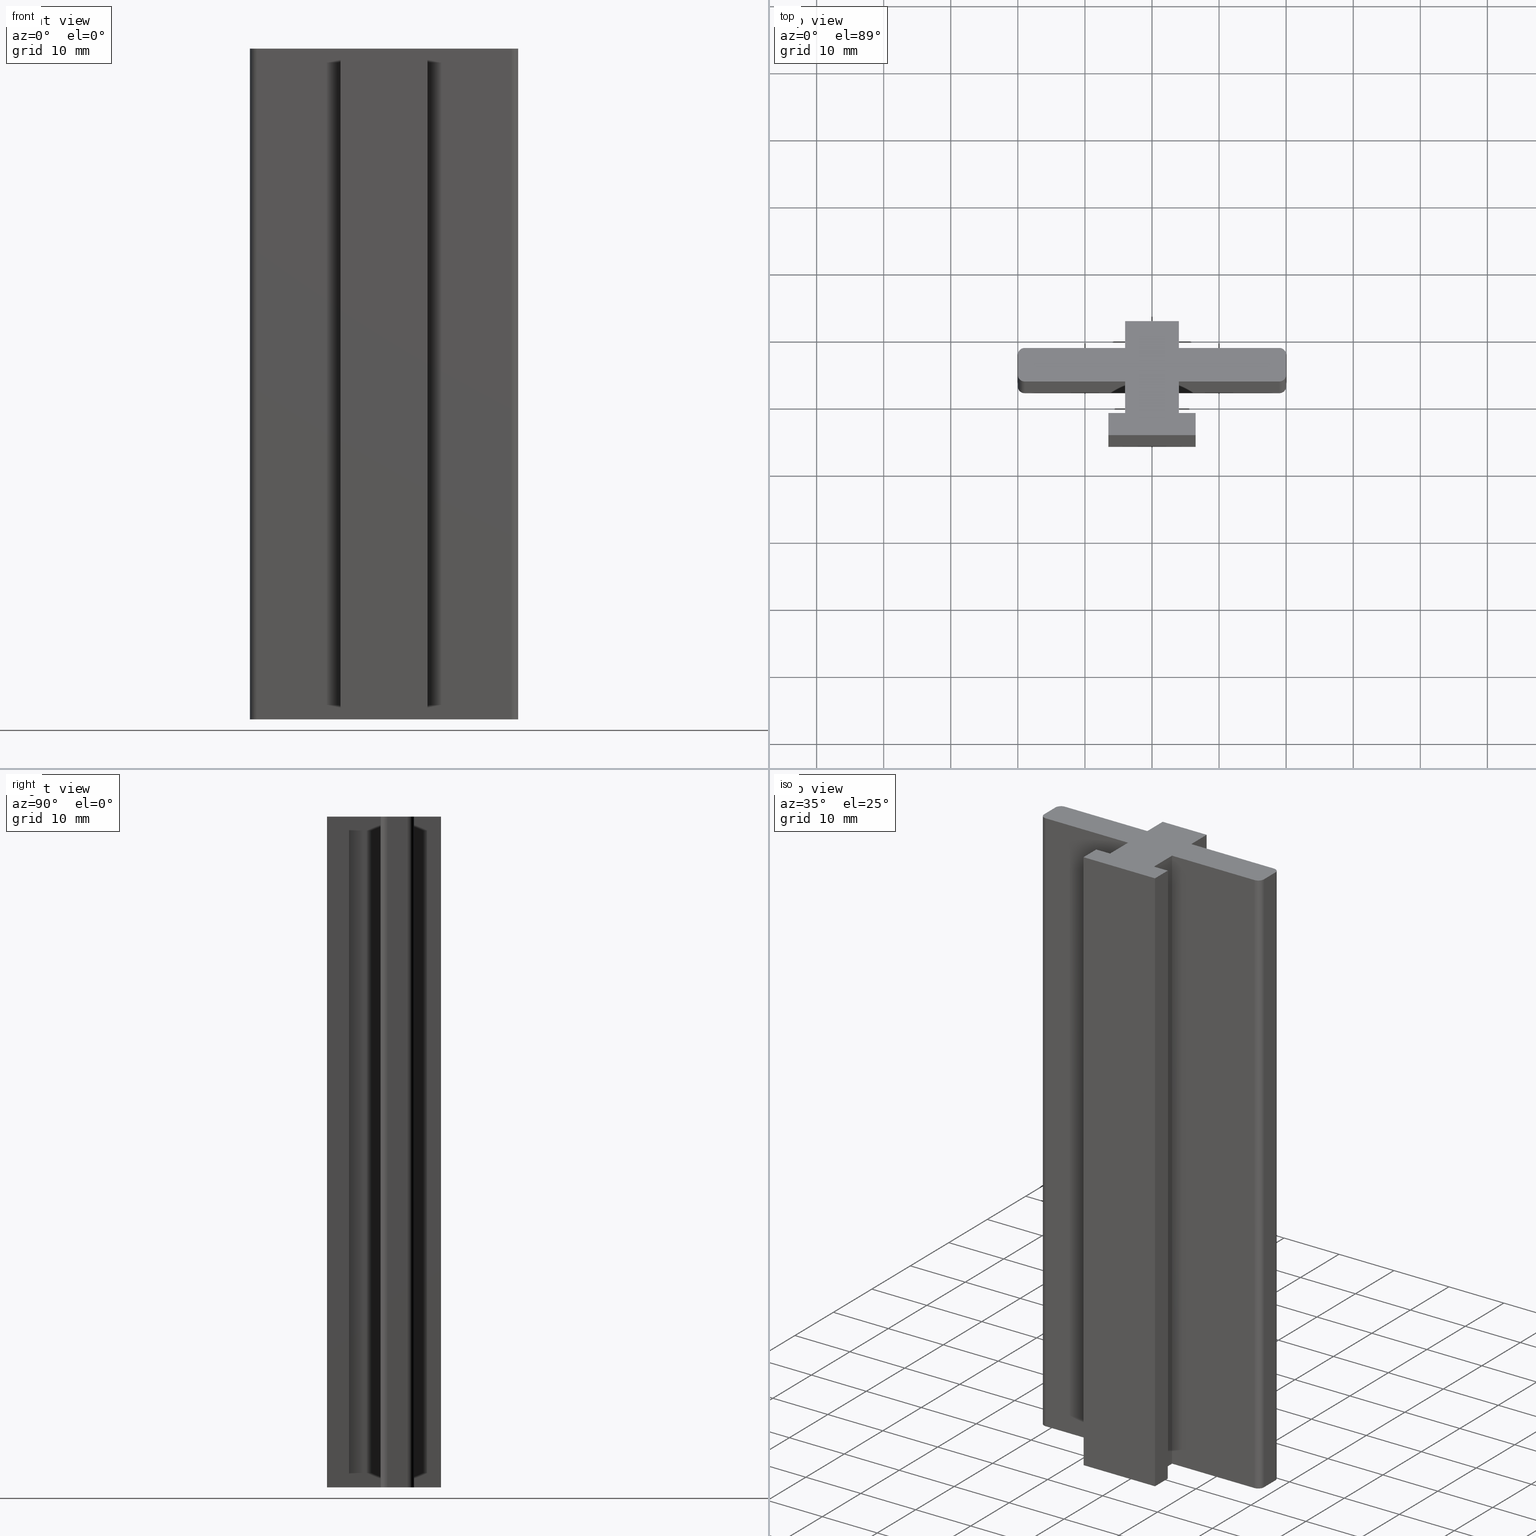
[diagram: canonical four-view strip — front | top / right | iso, engineering-drawing reading convention]
A machine part, canonical four-view strip (front | top / right | iso — engineering-drawing reading convention). The complete STEP part file that produces these views, byte-faithful:
ISO-10303-21;
HEADER;
/* Generated by software containing ST-Developer
 * from STEP Tools, Inc. (www.steptools.com) 
 */

FILE_DESCRIPTION(
/* description */ (''),
/* implementation_level */ '2;1');

FILE_NAME(
/* name */ 'Z:\\Nuovi render per accessori\\APRPZ0000019.stp',
/* time_stamp */ '2017-08-03T14:52:19+02:00',
/* author */ ('fzagni'),
/* organization */ (''),
/* preprocessor_version */ 'ST-DEVELOPER v16.1',
/* originating_system */ 'Autodesk Inventor 2016',
/* authorisation */ '');

FILE_SCHEMA (('AUTOMOTIVE_DESIGN { 1 0 10303 214 3 1 1 }'));
ENDSEC;

DATA;
#10=MECHANICAL_DESIGN_GEOMETRIC_PRESENTATION_REPRESENTATION('',(#13),#707);
#11=SHAPE_REPRESENTATION_RELATIONSHIP('SRR','None',#716,#12);
#12=ADVANCED_BREP_SHAPE_REPRESENTATION('',(#14),#706);
#13=STYLED_ITEM('',(#725),#14);
#14=MANIFOLD_SOLID_BREP('Solido1',#435);
#15=CIRCLE('',#440,1.);
#16=CIRCLE('',#441,1.);
#17=CIRCLE('',#444,1.);
#18=CIRCLE('',#445,1.);
#19=CIRCLE('',#456,1.);
#20=CIRCLE('',#457,1.);
#21=CIRCLE('',#460,1.);
#22=CIRCLE('',#461,1.);
#23=CYLINDRICAL_SURFACE('',#439,1.);
#24=CYLINDRICAL_SURFACE('',#443,1.);
#25=CYLINDRICAL_SURFACE('',#455,1.);
#26=CYLINDRICAL_SURFACE('',#459,1.);
#27=FACE_OUTER_BOUND('',#49,.T.);
#28=FACE_OUTER_BOUND('',#50,.T.);
#29=FACE_OUTER_BOUND('',#51,.T.);
#30=FACE_OUTER_BOUND('',#52,.T.);
#31=FACE_OUTER_BOUND('',#53,.T.);
#32=FACE_OUTER_BOUND('',#54,.T.);
#33=FACE_OUTER_BOUND('',#55,.T.);
#34=FACE_OUTER_BOUND('',#56,.T.);
#35=FACE_OUTER_BOUND('',#57,.T.);
#36=FACE_OUTER_BOUND('',#58,.T.);
#37=FACE_OUTER_BOUND('',#59,.T.);
#38=FACE_OUTER_BOUND('',#60,.T.);
#39=FACE_OUTER_BOUND('',#61,.T.);
#40=FACE_OUTER_BOUND('',#62,.T.);
#41=FACE_OUTER_BOUND('',#63,.T.);
#42=FACE_OUTER_BOUND('',#64,.T.);
#43=FACE_OUTER_BOUND('',#65,.T.);
#44=FACE_OUTER_BOUND('',#66,.T.);
#45=FACE_OUTER_BOUND('',#67,.T.);
#46=FACE_OUTER_BOUND('',#68,.T.);
#47=FACE_OUTER_BOUND('',#69,.T.);
#48=FACE_OUTER_BOUND('',#70,.T.);
#49=EDGE_LOOP('',(#275,#276,#277,#278));
#50=EDGE_LOOP('',(#279,#280,#281,#282));
#51=EDGE_LOOP('',(#283,#284,#285,#286));
#52=EDGE_LOOP('',(#287,#288,#289,#290));
#53=EDGE_LOOP('',(#291,#292,#293,#294));
#54=EDGE_LOOP('',(#295,#296,#297,#298));
#55=EDGE_LOOP('',(#299,#300,#301,#302));
#56=EDGE_LOOP('',(#303,#304,#305,#306));
#57=EDGE_LOOP('',(#307,#308,#309,#310));
#58=EDGE_LOOP('',(#311,#312,#313,#314));
#59=EDGE_LOOP('',(#315,#316,#317,#318));
#60=EDGE_LOOP('',(#319,#320,#321,#322));
#61=EDGE_LOOP('',(#323,#324,#325,#326));
#62=EDGE_LOOP('',(#327,#328,#329,#330));
#63=EDGE_LOOP('',(#331,#332,#333,#334));
#64=EDGE_LOOP('',(#335,#336,#337,#338));
#65=EDGE_LOOP('',(#339,#340,#341,#342));
#66=EDGE_LOOP('',(#343,#344,#345,#346));
#67=EDGE_LOOP('',(#347,#348,#349,#350));
#68=EDGE_LOOP('',(#351,#352,#353,#354));
#69=EDGE_LOOP('',(#355,#356,#357,#358,#359,#360,#361,#362,#363,#364,#365,
#366,#367,#368,#369,#370,#371,#372,#373,#374));
#70=EDGE_LOOP('',(#375,#376,#377,#378,#379,#380,#381,#382,#383,#384,#385,
#386,#387,#388,#389,#390,#391,#392,#393,#394));
#71=LINE('',#585,#123);
#72=LINE('',#587,#124);
#73=LINE('',#589,#125);
#74=LINE('',#590,#126);
#75=LINE('',#593,#127);
#76=LINE('',#595,#128);
#77=LINE('',#596,#129);
#78=LINE('',#602,#130);
#79=LINE('',#605,#131);
#80=LINE('',#607,#132);
#81=LINE('',#608,#133);
#82=LINE('',#614,#134);
#83=LINE('',#617,#135);
#84=LINE('',#619,#136);
#85=LINE('',#620,#137);
#86=LINE('',#623,#138);
#87=LINE('',#625,#139);
#88=LINE('',#626,#140);
#89=LINE('',#629,#141);
#90=LINE('',#631,#142);
#91=LINE('',#632,#143);
#92=LINE('',#635,#144);
#93=LINE('',#637,#145);
#94=LINE('',#638,#146);
#95=LINE('',#641,#147);
#96=LINE('',#643,#148);
#97=LINE('',#644,#149);
#98=LINE('',#647,#150);
#99=LINE('',#649,#151);
#100=LINE('',#650,#152);
#101=LINE('',#653,#153);
#102=LINE('',#655,#154);
#103=LINE('',#656,#155);
#104=LINE('',#659,#156);
#105=LINE('',#661,#157);
#106=LINE('',#662,#158);
#107=LINE('',#665,#159);
#108=LINE('',#667,#160);
#109=LINE('',#668,#161);
#110=LINE('',#674,#162);
#111=LINE('',#677,#163);
#112=LINE('',#679,#164);
#113=LINE('',#680,#165);
#114=LINE('',#686,#166);
#115=LINE('',#689,#167);
#116=LINE('',#691,#168);
#117=LINE('',#692,#169);
#118=LINE('',#695,#170);
#119=LINE('',#697,#171);
#120=LINE('',#698,#172);
#121=LINE('',#700,#173);
#122=LINE('',#701,#174);
#123=VECTOR('',#471,4.);
#124=VECTOR('',#472,100.);
#125=VECTOR('',#473,4.);
#126=VECTOR('',#474,100.);
#127=VECTOR('',#477,15.);
#128=VECTOR('',#478,15.);
#129=VECTOR('',#479,100.);
#130=VECTOR('',#486,100.);
#131=VECTOR('',#489,3.);
#132=VECTOR('',#490,3.);
#133=VECTOR('',#491,100.);
#134=VECTOR('',#498,100.);
#135=VECTOR('',#501,15.);
#136=VECTOR('',#502,15.);
#137=VECTOR('',#503,100.);
#138=VECTOR('',#506,4.7);
#139=VECTOR('',#507,4.7);
#140=VECTOR('',#508,100.);
#141=VECTOR('',#511,2.5);
#142=VECTOR('',#512,2.5);
#143=VECTOR('',#513,100.);
#144=VECTOR('',#516,3.3);
#145=VECTOR('',#517,3.3);
#146=VECTOR('',#518,100.);
#147=VECTOR('',#521,13.);
#148=VECTOR('',#522,13.);
#149=VECTOR('',#523,100.);
#150=VECTOR('',#526,3.3);
#151=VECTOR('',#527,3.3);
#152=VECTOR('',#528,100.);
#153=VECTOR('',#531,2.5);
#154=VECTOR('',#532,2.5);
#155=VECTOR('',#533,100.);
#156=VECTOR('',#536,4.7);
#157=VECTOR('',#537,4.7);
#158=VECTOR('',#538,100.);
#159=VECTOR('',#541,15.);
#160=VECTOR('',#542,15.);
#161=VECTOR('',#543,100.);
#162=VECTOR('',#550,100.);
#163=VECTOR('',#553,3.);
#164=VECTOR('',#554,3.);
#165=VECTOR('',#555,100.);
#166=VECTOR('',#562,100.);
#167=VECTOR('',#565,15.);
#168=VECTOR('',#566,15.);
#169=VECTOR('',#567,100.);
#170=VECTOR('',#570,4.);
#171=VECTOR('',#571,4.);
#172=VECTOR('',#572,100.);
#173=VECTOR('',#575,8.);
#174=VECTOR('',#576,8.);
#175=VERTEX_POINT('',#583);
#176=VERTEX_POINT('',#584);
#177=VERTEX_POINT('',#586);
#178=VERTEX_POINT('',#588);
#179=VERTEX_POINT('',#592);
#180=VERTEX_POINT('',#594);
#181=VERTEX_POINT('',#598);
#182=VERTEX_POINT('',#600);
#183=VERTEX_POINT('',#604);
#184=VERTEX_POINT('',#606);
#185=VERTEX_POINT('',#610);
#186=VERTEX_POINT('',#612);
#187=VERTEX_POINT('',#616);
#188=VERTEX_POINT('',#618);
#189=VERTEX_POINT('',#622);
#190=VERTEX_POINT('',#624);
#191=VERTEX_POINT('',#628);
#192=VERTEX_POINT('',#630);
#193=VERTEX_POINT('',#634);
#194=VERTEX_POINT('',#636);
#195=VERTEX_POINT('',#640);
#196=VERTEX_POINT('',#642);
#197=VERTEX_POINT('',#646);
#198=VERTEX_POINT('',#648);
#199=VERTEX_POINT('',#652);
#200=VERTEX_POINT('',#654);
#201=VERTEX_POINT('',#658);
#202=VERTEX_POINT('',#660);
#203=VERTEX_POINT('',#664);
#204=VERTEX_POINT('',#666);
#205=VERTEX_POINT('',#670);
#206=VERTEX_POINT('',#672);
#207=VERTEX_POINT('',#676);
#208=VERTEX_POINT('',#678);
#209=VERTEX_POINT('',#682);
#210=VERTEX_POINT('',#684);
#211=VERTEX_POINT('',#688);
#212=VERTEX_POINT('',#690);
#213=VERTEX_POINT('',#694);
#214=VERTEX_POINT('',#696);
#215=EDGE_CURVE('',#175,#176,#71,.T.);
#216=EDGE_CURVE('',#176,#177,#72,.T.);
#217=EDGE_CURVE('',#178,#177,#73,.T.);
#218=EDGE_CURVE('',#175,#178,#74,.T.);
#219=EDGE_CURVE('',#179,#175,#75,.T.);
#220=EDGE_CURVE('',#180,#178,#76,.T.);
#221=EDGE_CURVE('',#179,#180,#77,.T.);
#222=EDGE_CURVE('',#181,#179,#15,.T.);
#223=EDGE_CURVE('',#182,#180,#16,.T.);
#224=EDGE_CURVE('',#181,#182,#78,.T.);
#225=EDGE_CURVE('',#183,#181,#79,.T.);
#226=EDGE_CURVE('',#184,#182,#80,.T.);
#227=EDGE_CURVE('',#183,#184,#81,.T.);
#228=EDGE_CURVE('',#185,#183,#17,.T.);
#229=EDGE_CURVE('',#186,#184,#18,.T.);
#230=EDGE_CURVE('',#185,#186,#82,.T.);
#231=EDGE_CURVE('',#187,#185,#83,.T.);
#232=EDGE_CURVE('',#188,#186,#84,.T.);
#233=EDGE_CURVE('',#187,#188,#85,.T.);
#234=EDGE_CURVE('',#189,#187,#86,.T.);
#235=EDGE_CURVE('',#190,#188,#87,.T.);
#236=EDGE_CURVE('',#189,#190,#88,.T.);
#237=EDGE_CURVE('',#191,#189,#89,.T.);
#238=EDGE_CURVE('',#192,#190,#90,.T.);
#239=EDGE_CURVE('',#191,#192,#91,.T.);
#240=EDGE_CURVE('',#193,#191,#92,.T.);
#241=EDGE_CURVE('',#194,#192,#93,.T.);
#242=EDGE_CURVE('',#193,#194,#94,.T.);
#243=EDGE_CURVE('',#195,#193,#95,.T.);
#244=EDGE_CURVE('',#196,#194,#96,.T.);
#245=EDGE_CURVE('',#195,#196,#97,.T.);
#246=EDGE_CURVE('',#197,#195,#98,.T.);
#247=EDGE_CURVE('',#198,#196,#99,.T.);
#248=EDGE_CURVE('',#197,#198,#100,.T.);
#249=EDGE_CURVE('',#199,#197,#101,.T.);
#250=EDGE_CURVE('',#200,#198,#102,.T.);
#251=EDGE_CURVE('',#199,#200,#103,.T.);
#252=EDGE_CURVE('',#201,#199,#104,.T.);
#253=EDGE_CURVE('',#202,#200,#105,.T.);
#254=EDGE_CURVE('',#201,#202,#106,.T.);
#255=EDGE_CURVE('',#203,#201,#107,.T.);
#256=EDGE_CURVE('',#204,#202,#108,.T.);
#257=EDGE_CURVE('',#203,#204,#109,.T.);
#258=EDGE_CURVE('',#205,#203,#19,.T.);
#259=EDGE_CURVE('',#206,#204,#20,.T.);
#260=EDGE_CURVE('',#205,#206,#110,.T.);
#261=EDGE_CURVE('',#207,#205,#111,.T.);
#262=EDGE_CURVE('',#208,#206,#112,.T.);
#263=EDGE_CURVE('',#207,#208,#113,.T.);
#264=EDGE_CURVE('',#209,#207,#21,.T.);
#265=EDGE_CURVE('',#210,#208,#22,.T.);
#266=EDGE_CURVE('',#209,#210,#114,.T.);
#267=EDGE_CURVE('',#211,#209,#115,.T.);
#268=EDGE_CURVE('',#212,#210,#116,.T.);
#269=EDGE_CURVE('',#211,#212,#117,.T.);
#270=EDGE_CURVE('',#213,#211,#118,.T.);
#271=EDGE_CURVE('',#214,#212,#119,.T.);
#272=EDGE_CURVE('',#213,#214,#120,.T.);
#273=EDGE_CURVE('',#176,#213,#121,.T.);
#274=EDGE_CURVE('',#177,#214,#122,.T.);
#275=ORIENTED_EDGE('',*,*,#215,.T.);
#276=ORIENTED_EDGE('',*,*,#216,.T.);
#277=ORIENTED_EDGE('',*,*,#217,.F.);
#278=ORIENTED_EDGE('',*,*,#218,.F.);
#279=ORIENTED_EDGE('',*,*,#219,.T.);
#280=ORIENTED_EDGE('',*,*,#218,.T.);
#281=ORIENTED_EDGE('',*,*,#220,.F.);
#282=ORIENTED_EDGE('',*,*,#221,.F.);
#283=ORIENTED_EDGE('',*,*,#222,.T.);
#284=ORIENTED_EDGE('',*,*,#221,.T.);
#285=ORIENTED_EDGE('',*,*,#223,.F.);
#286=ORIENTED_EDGE('',*,*,#224,.F.);
#287=ORIENTED_EDGE('',*,*,#225,.T.);
#288=ORIENTED_EDGE('',*,*,#224,.T.);
#289=ORIENTED_EDGE('',*,*,#226,.F.);
#290=ORIENTED_EDGE('',*,*,#227,.F.);
#291=ORIENTED_EDGE('',*,*,#228,.T.);
#292=ORIENTED_EDGE('',*,*,#227,.T.);
#293=ORIENTED_EDGE('',*,*,#229,.F.);
#294=ORIENTED_EDGE('',*,*,#230,.F.);
#295=ORIENTED_EDGE('',*,*,#231,.T.);
#296=ORIENTED_EDGE('',*,*,#230,.T.);
#297=ORIENTED_EDGE('',*,*,#232,.F.);
#298=ORIENTED_EDGE('',*,*,#233,.F.);
#299=ORIENTED_EDGE('',*,*,#234,.T.);
#300=ORIENTED_EDGE('',*,*,#233,.T.);
#301=ORIENTED_EDGE('',*,*,#235,.F.);
#302=ORIENTED_EDGE('',*,*,#236,.F.);
#303=ORIENTED_EDGE('',*,*,#237,.T.);
#304=ORIENTED_EDGE('',*,*,#236,.T.);
#305=ORIENTED_EDGE('',*,*,#238,.F.);
#306=ORIENTED_EDGE('',*,*,#239,.F.);
#307=ORIENTED_EDGE('',*,*,#240,.T.);
#308=ORIENTED_EDGE('',*,*,#239,.T.);
#309=ORIENTED_EDGE('',*,*,#241,.F.);
#310=ORIENTED_EDGE('',*,*,#242,.F.);
#311=ORIENTED_EDGE('',*,*,#243,.T.);
#312=ORIENTED_EDGE('',*,*,#242,.T.);
#313=ORIENTED_EDGE('',*,*,#244,.F.);
#314=ORIENTED_EDGE('',*,*,#245,.F.);
#315=ORIENTED_EDGE('',*,*,#246,.T.);
#316=ORIENTED_EDGE('',*,*,#245,.T.);
#317=ORIENTED_EDGE('',*,*,#247,.F.);
#318=ORIENTED_EDGE('',*,*,#248,.F.);
#319=ORIENTED_EDGE('',*,*,#249,.T.);
#320=ORIENTED_EDGE('',*,*,#248,.T.);
#321=ORIENTED_EDGE('',*,*,#250,.F.);
#322=ORIENTED_EDGE('',*,*,#251,.F.);
#323=ORIENTED_EDGE('',*,*,#252,.T.);
#324=ORIENTED_EDGE('',*,*,#251,.T.);
#325=ORIENTED_EDGE('',*,*,#253,.F.);
#326=ORIENTED_EDGE('',*,*,#254,.F.);
#327=ORIENTED_EDGE('',*,*,#255,.T.);
#328=ORIENTED_EDGE('',*,*,#254,.T.);
#329=ORIENTED_EDGE('',*,*,#256,.F.);
#330=ORIENTED_EDGE('',*,*,#257,.F.);
#331=ORIENTED_EDGE('',*,*,#258,.T.);
#332=ORIENTED_EDGE('',*,*,#257,.T.);
#333=ORIENTED_EDGE('',*,*,#259,.F.);
#334=ORIENTED_EDGE('',*,*,#260,.F.);
#335=ORIENTED_EDGE('',*,*,#261,.T.);
#336=ORIENTED_EDGE('',*,*,#260,.T.);
#337=ORIENTED_EDGE('',*,*,#262,.F.);
#338=ORIENTED_EDGE('',*,*,#263,.F.);
#339=ORIENTED_EDGE('',*,*,#264,.T.);
#340=ORIENTED_EDGE('',*,*,#263,.T.);
#341=ORIENTED_EDGE('',*,*,#265,.F.);
#342=ORIENTED_EDGE('',*,*,#266,.F.);
#343=ORIENTED_EDGE('',*,*,#267,.T.);
#344=ORIENTED_EDGE('',*,*,#266,.T.);
#345=ORIENTED_EDGE('',*,*,#268,.F.);
#346=ORIENTED_EDGE('',*,*,#269,.F.);
#347=ORIENTED_EDGE('',*,*,#270,.T.);
#348=ORIENTED_EDGE('',*,*,#269,.T.);
#349=ORIENTED_EDGE('',*,*,#271,.F.);
#350=ORIENTED_EDGE('',*,*,#272,.F.);
#351=ORIENTED_EDGE('',*,*,#273,.T.);
#352=ORIENTED_EDGE('',*,*,#272,.T.);
#353=ORIENTED_EDGE('',*,*,#274,.F.);
#354=ORIENTED_EDGE('',*,*,#216,.F.);
#355=ORIENTED_EDGE('',*,*,#274,.T.);
#356=ORIENTED_EDGE('',*,*,#271,.T.);
#357=ORIENTED_EDGE('',*,*,#268,.T.);
#358=ORIENTED_EDGE('',*,*,#265,.T.);
#359=ORIENTED_EDGE('',*,*,#262,.T.);
#360=ORIENTED_EDGE('',*,*,#259,.T.);
#361=ORIENTED_EDGE('',*,*,#256,.T.);
#362=ORIENTED_EDGE('',*,*,#253,.T.);
#363=ORIENTED_EDGE('',*,*,#250,.T.);
#364=ORIENTED_EDGE('',*,*,#247,.T.);
#365=ORIENTED_EDGE('',*,*,#244,.T.);
#366=ORIENTED_EDGE('',*,*,#241,.T.);
#367=ORIENTED_EDGE('',*,*,#238,.T.);
#368=ORIENTED_EDGE('',*,*,#235,.T.);
#369=ORIENTED_EDGE('',*,*,#232,.T.);
#370=ORIENTED_EDGE('',*,*,#229,.T.);
#371=ORIENTED_EDGE('',*,*,#226,.T.);
#372=ORIENTED_EDGE('',*,*,#223,.T.);
#373=ORIENTED_EDGE('',*,*,#220,.T.);
#374=ORIENTED_EDGE('',*,*,#217,.T.);
#375=ORIENTED_EDGE('',*,*,#273,.F.);
#376=ORIENTED_EDGE('',*,*,#215,.F.);
#377=ORIENTED_EDGE('',*,*,#219,.F.);
#378=ORIENTED_EDGE('',*,*,#222,.F.);
#379=ORIENTED_EDGE('',*,*,#225,.F.);
#380=ORIENTED_EDGE('',*,*,#228,.F.);
#381=ORIENTED_EDGE('',*,*,#231,.F.);
#382=ORIENTED_EDGE('',*,*,#234,.F.);
#383=ORIENTED_EDGE('',*,*,#237,.F.);
#384=ORIENTED_EDGE('',*,*,#240,.F.);
#385=ORIENTED_EDGE('',*,*,#243,.F.);
#386=ORIENTED_EDGE('',*,*,#246,.F.);
#387=ORIENTED_EDGE('',*,*,#249,.F.);
#388=ORIENTED_EDGE('',*,*,#252,.F.);
#389=ORIENTED_EDGE('',*,*,#255,.F.);
#390=ORIENTED_EDGE('',*,*,#258,.F.);
#391=ORIENTED_EDGE('',*,*,#261,.F.);
#392=ORIENTED_EDGE('',*,*,#264,.F.);
#393=ORIENTED_EDGE('',*,*,#267,.F.);
#394=ORIENTED_EDGE('',*,*,#270,.F.);
#395=PLANE('',#437);
#396=PLANE('',#438);
#397=PLANE('',#442);
#398=PLANE('',#446);
#399=PLANE('',#447);
#400=PLANE('',#448);
#401=PLANE('',#449);
#402=PLANE('',#450);
#403=PLANE('',#451);
#404=PLANE('',#452);
#405=PLANE('',#453);
#406=PLANE('',#454);
#407=PLANE('',#458);
#408=PLANE('',#462);
#409=PLANE('',#463);
#410=PLANE('',#464);
#411=PLANE('',#465);
#412=PLANE('',#466);
#413=ADVANCED_FACE('',(#27),#395,.T.);
#414=ADVANCED_FACE('',(#28),#396,.T.);
#415=ADVANCED_FACE('',(#29),#23,.T.);
#416=ADVANCED_FACE('',(#30),#397,.T.);
#417=ADVANCED_FACE('',(#31),#24,.T.);
#418=ADVANCED_FACE('',(#32),#398,.T.);
#419=ADVANCED_FACE('',(#33),#399,.T.);
#420=ADVANCED_FACE('',(#34),#400,.T.);
#421=ADVANCED_FACE('',(#35),#401,.T.);
#422=ADVANCED_FACE('',(#36),#402,.T.);
#423=ADVANCED_FACE('',(#37),#403,.T.);
#424=ADVANCED_FACE('',(#38),#404,.T.);
#425=ADVANCED_FACE('',(#39),#405,.T.);
#426=ADVANCED_FACE('',(#40),#406,.T.);
#427=ADVANCED_FACE('',(#41),#25,.T.);
#428=ADVANCED_FACE('',(#42),#407,.T.);
#429=ADVANCED_FACE('',(#43),#26,.T.);
#430=ADVANCED_FACE('',(#44),#408,.T.);
#431=ADVANCED_FACE('',(#45),#409,.T.);
#432=ADVANCED_FACE('',(#46),#410,.T.);
#433=ADVANCED_FACE('',(#47),#411,.T.);
#434=ADVANCED_FACE('',(#48),#412,.F.);
#435=CLOSED_SHELL('',(#413,#414,#415,#416,#417,#418,#419,#420,#421,#422,
#423,#424,#425,#426,#427,#428,#429,#430,#431,#432,#433,#434));
#436=AXIS2_PLACEMENT_3D('placement',#581,#467,#468);
#437=AXIS2_PLACEMENT_3D('',#582,#469,#470);
#438=AXIS2_PLACEMENT_3D('',#591,#475,#476);
#439=AXIS2_PLACEMENT_3D('',#597,#480,#481);
#440=AXIS2_PLACEMENT_3D('',#599,#482,#483);
#441=AXIS2_PLACEMENT_3D('',#601,#484,#485);
#442=AXIS2_PLACEMENT_3D('',#603,#487,#488);
#443=AXIS2_PLACEMENT_3D('',#609,#492,#493);
#444=AXIS2_PLACEMENT_3D('',#611,#494,#495);
#445=AXIS2_PLACEMENT_3D('',#613,#496,#497);
#446=AXIS2_PLACEMENT_3D('',#615,#499,#500);
#447=AXIS2_PLACEMENT_3D('',#621,#504,#505);
#448=AXIS2_PLACEMENT_3D('',#627,#509,#510);
#449=AXIS2_PLACEMENT_3D('',#633,#514,#515);
#450=AXIS2_PLACEMENT_3D('',#639,#519,#520);
#451=AXIS2_PLACEMENT_3D('',#645,#524,#525);
#452=AXIS2_PLACEMENT_3D('',#651,#529,#530);
#453=AXIS2_PLACEMENT_3D('',#657,#534,#535);
#454=AXIS2_PLACEMENT_3D('',#663,#539,#540);
#455=AXIS2_PLACEMENT_3D('',#669,#544,#545);
#456=AXIS2_PLACEMENT_3D('',#671,#546,#547);
#457=AXIS2_PLACEMENT_3D('',#673,#548,#549);
#458=AXIS2_PLACEMENT_3D('',#675,#551,#552);
#459=AXIS2_PLACEMENT_3D('',#681,#556,#557);
#460=AXIS2_PLACEMENT_3D('',#683,#558,#559);
#461=AXIS2_PLACEMENT_3D('',#685,#560,#561);
#462=AXIS2_PLACEMENT_3D('',#687,#563,#564);
#463=AXIS2_PLACEMENT_3D('',#693,#568,#569);
#464=AXIS2_PLACEMENT_3D('',#699,#573,#574);
#465=AXIS2_PLACEMENT_3D('',#702,#577,#578);
#466=AXIS2_PLACEMENT_3D('',#703,#579,#580);
#467=DIRECTION('axis',(0.,0.,1.));
#468=DIRECTION('refdir',(1.,0.,0.));
#469=DIRECTION('center_axis',(1.,0.,0.));
#470=DIRECTION('ref_axis',(0.,1.,0.));
#471=DIRECTION('',(0.,1.,0.));
#472=DIRECTION('',(0.,0.,1.));
#473=DIRECTION('',(0.,1.,0.));
#474=DIRECTION('',(0.,0.,1.));
#475=DIRECTION('center_axis',(0.,1.,0.));
#476=DIRECTION('ref_axis',(-1.,0.,0.));
#477=DIRECTION('',(-1.,0.,0.));
#478=DIRECTION('',(-1.,0.,0.));
#479=DIRECTION('',(0.,0.,1.));
#480=DIRECTION('center_axis',(0.,0.,1.));
#481=DIRECTION('ref_axis',(1.,-1.11022302462516E-15,0.));
#482=DIRECTION('center_axis',(0.,0.,1.));
#483=DIRECTION('ref_axis',(1.,-1.11022302462516E-15,0.));
#484=DIRECTION('center_axis',(0.,0.,1.));
#485=DIRECTION('ref_axis',(1.,-1.11022302462516E-15,0.));
#486=DIRECTION('',(0.,0.,1.));
#487=DIRECTION('center_axis',(1.,0.,0.));
#488=DIRECTION('ref_axis',(0.,1.,0.));
#489=DIRECTION('',(0.,1.,0.));
#490=DIRECTION('',(0.,1.,0.));
#491=DIRECTION('',(0.,0.,1.));
#492=DIRECTION('center_axis',(0.,0.,1.));
#493=DIRECTION('ref_axis',(0.,-1.,0.));
#494=DIRECTION('center_axis',(0.,0.,1.));
#495=DIRECTION('ref_axis',(0.,-1.,0.));
#496=DIRECTION('center_axis',(0.,0.,1.));
#497=DIRECTION('ref_axis',(0.,-1.,0.));
#498=DIRECTION('',(0.,0.,1.));
#499=DIRECTION('center_axis',(0.,-1.,0.));
#500=DIRECTION('ref_axis',(1.,0.,0.));
#501=DIRECTION('',(1.,0.,0.));
#502=DIRECTION('',(1.,0.,0.));
#503=DIRECTION('',(0.,0.,1.));
#504=DIRECTION('center_axis',(1.,0.,0.));
#505=DIRECTION('ref_axis',(0.,1.,0.));
#506=DIRECTION('',(0.,1.,0.));
#507=DIRECTION('',(0.,1.,0.));
#508=DIRECTION('',(0.,0.,1.));
#509=DIRECTION('center_axis',(0.,1.,0.));
#510=DIRECTION('ref_axis',(-1.,0.,0.));
#511=DIRECTION('',(-1.,0.,0.));
#512=DIRECTION('',(-1.,0.,0.));
#513=DIRECTION('',(0.,0.,1.));
#514=DIRECTION('center_axis',(1.,0.,0.));
#515=DIRECTION('ref_axis',(0.,1.,0.));
#516=DIRECTION('',(0.,1.,0.));
#517=DIRECTION('',(0.,1.,0.));
#518=DIRECTION('',(0.,0.,1.));
#519=DIRECTION('center_axis',(0.,-1.,0.));
#520=DIRECTION('ref_axis',(1.,0.,0.));
#521=DIRECTION('',(1.,0.,0.));
#522=DIRECTION('',(1.,0.,0.));
#523=DIRECTION('',(0.,0.,1.));
#524=DIRECTION('center_axis',(-1.,0.,0.));
#525=DIRECTION('ref_axis',(0.,-1.,0.));
#526=DIRECTION('',(0.,-1.,0.));
#527=DIRECTION('',(0.,-1.,0.));
#528=DIRECTION('',(0.,0.,1.));
#529=DIRECTION('center_axis',(0.,1.,0.));
#530=DIRECTION('ref_axis',(-1.,0.,0.));
#531=DIRECTION('',(-1.,0.,0.));
#532=DIRECTION('',(-1.,0.,0.));
#533=DIRECTION('',(0.,0.,1.));
#534=DIRECTION('center_axis',(-1.,0.,0.));
#535=DIRECTION('ref_axis',(0.,-1.,0.));
#536=DIRECTION('',(0.,-1.,0.));
#537=DIRECTION('',(0.,-1.,0.));
#538=DIRECTION('',(0.,0.,1.));
#539=DIRECTION('center_axis',(0.,-1.,0.));
#540=DIRECTION('ref_axis',(1.,0.,0.));
#541=DIRECTION('',(1.,0.,0.));
#542=DIRECTION('',(1.,0.,0.));
#543=DIRECTION('',(0.,0.,1.));
#544=DIRECTION('center_axis',(0.,0.,1.));
#545=DIRECTION('ref_axis',(-1.,0.,0.));
#546=DIRECTION('center_axis',(0.,0.,1.));
#547=DIRECTION('ref_axis',(-1.,0.,0.));
#548=DIRECTION('center_axis',(0.,0.,1.));
#549=DIRECTION('ref_axis',(-1.,0.,0.));
#550=DIRECTION('',(0.,0.,1.));
#551=DIRECTION('center_axis',(-1.,0.,0.));
#552=DIRECTION('ref_axis',(0.,-1.,0.));
#553=DIRECTION('',(0.,-1.,0.));
#554=DIRECTION('',(0.,-1.,0.));
#555=DIRECTION('',(0.,0.,1.));
#556=DIRECTION('center_axis',(0.,0.,1.));
#557=DIRECTION('ref_axis',(0.,1.,0.));
#558=DIRECTION('center_axis',(0.,0.,1.));
#559=DIRECTION('ref_axis',(0.,1.,0.));
#560=DIRECTION('center_axis',(0.,0.,1.));
#561=DIRECTION('ref_axis',(0.,1.,0.));
#562=DIRECTION('',(0.,0.,1.));
#563=DIRECTION('center_axis',(0.,1.,0.));
#564=DIRECTION('ref_axis',(-1.,0.,0.));
#565=DIRECTION('',(-1.,0.,0.));
#566=DIRECTION('',(-1.,0.,0.));
#567=DIRECTION('',(0.,0.,1.));
#568=DIRECTION('center_axis',(-1.,0.,0.));
#569=DIRECTION('ref_axis',(0.,-1.,0.));
#570=DIRECTION('',(0.,-1.,0.));
#571=DIRECTION('',(0.,-1.,0.));
#572=DIRECTION('',(0.,0.,1.));
#573=DIRECTION('center_axis',(0.,1.,0.));
#574=DIRECTION('ref_axis',(-1.,0.,0.));
#575=DIRECTION('',(-1.,0.,0.));
#576=DIRECTION('',(-1.,0.,0.));
#577=DIRECTION('center_axis',(0.,0.,1.));
#578=DIRECTION('ref_axis',(1.,0.,0.));
#579=DIRECTION('center_axis',(0.,0.,1.));
#580=DIRECTION('ref_axis',(1.,0.,0.));
#581=CARTESIAN_POINT('',(0.,0.,0.));
#582=CARTESIAN_POINT('Origin',(4.,7.35,0.));
#583=CARTESIAN_POINT('',(4.,7.35,0.));
#584=CARTESIAN_POINT('',(4.,11.35,0.));
#585=CARTESIAN_POINT('',(4.,7.35,0.));
#586=CARTESIAN_POINT('',(4.,11.35,100.));
#587=CARTESIAN_POINT('',(4.,11.35,0.));
#588=CARTESIAN_POINT('',(4.,7.35,100.));
#589=CARTESIAN_POINT('',(4.,7.35,100.));
#590=CARTESIAN_POINT('',(4.,7.35,0.));
#591=CARTESIAN_POINT('Origin',(19.,7.35,0.));
#592=CARTESIAN_POINT('',(19.,7.35,0.));
#593=CARTESIAN_POINT('',(19.,7.35,0.));
#594=CARTESIAN_POINT('',(19.,7.35,100.));
#595=CARTESIAN_POINT('',(19.,7.35,100.));
#596=CARTESIAN_POINT('',(19.,7.35,0.));
#597=CARTESIAN_POINT('Origin',(19.,6.35,0.));
#598=CARTESIAN_POINT('',(20.,6.35,0.));
#599=CARTESIAN_POINT('Origin',(19.,6.35,0.));
#600=CARTESIAN_POINT('',(20.,6.35,100.));
#601=CARTESIAN_POINT('Origin',(19.,6.35,100.));
#602=CARTESIAN_POINT('',(20.,6.35,0.));
#603=CARTESIAN_POINT('Origin',(20.,3.35,0.));
#604=CARTESIAN_POINT('',(20.,3.35,0.));
#605=CARTESIAN_POINT('',(20.,3.35,0.));
#606=CARTESIAN_POINT('',(20.,3.35,100.));
#607=CARTESIAN_POINT('',(20.,3.35,100.));
#608=CARTESIAN_POINT('',(20.,3.35,0.));
#609=CARTESIAN_POINT('Origin',(19.,3.35,0.));
#610=CARTESIAN_POINT('',(19.,2.35,0.));
#611=CARTESIAN_POINT('Origin',(19.,3.35,0.));
#612=CARTESIAN_POINT('',(19.,2.35,100.));
#613=CARTESIAN_POINT('Origin',(19.,3.35,100.));
#614=CARTESIAN_POINT('',(19.,2.35,0.));
#615=CARTESIAN_POINT('Origin',(4.,2.35,0.));
#616=CARTESIAN_POINT('',(4.,2.35,0.));
#617=CARTESIAN_POINT('',(4.,2.35,0.));
#618=CARTESIAN_POINT('',(4.,2.35,100.));
#619=CARTESIAN_POINT('',(4.,2.35,100.));
#620=CARTESIAN_POINT('',(4.,2.35,0.));
#621=CARTESIAN_POINT('Origin',(4.,-2.35,0.));
#622=CARTESIAN_POINT('',(4.,-2.35,0.));
#623=CARTESIAN_POINT('',(4.,-2.35,0.));
#624=CARTESIAN_POINT('',(4.,-2.35,100.));
#625=CARTESIAN_POINT('',(4.,-2.35,100.));
#626=CARTESIAN_POINT('',(4.,-2.35,0.));
#627=CARTESIAN_POINT('Origin',(6.5,-2.35,0.));
#628=CARTESIAN_POINT('',(6.5,-2.35,0.));
#629=CARTESIAN_POINT('',(6.5,-2.35,0.));
#630=CARTESIAN_POINT('',(6.5,-2.35,100.));
#631=CARTESIAN_POINT('',(6.5,-2.35,100.));
#632=CARTESIAN_POINT('',(6.5,-2.35,0.));
#633=CARTESIAN_POINT('Origin',(6.5,-5.65,0.));
#634=CARTESIAN_POINT('',(6.5,-5.65,0.));
#635=CARTESIAN_POINT('',(6.5,-5.65,0.));
#636=CARTESIAN_POINT('',(6.5,-5.65,100.));
#637=CARTESIAN_POINT('',(6.5,-5.65,100.));
#638=CARTESIAN_POINT('',(6.5,-5.65,0.));
#639=CARTESIAN_POINT('Origin',(-6.5,-5.65,0.));
#640=CARTESIAN_POINT('',(-6.5,-5.65,0.));
#641=CARTESIAN_POINT('',(-6.5,-5.65,0.));
#642=CARTESIAN_POINT('',(-6.5,-5.65,100.));
#643=CARTESIAN_POINT('',(-6.5,-5.65,100.));
#644=CARTESIAN_POINT('',(-6.5,-5.65,0.));
#645=CARTESIAN_POINT('Origin',(-6.5,-2.35,0.));
#646=CARTESIAN_POINT('',(-6.5,-2.35,0.));
#647=CARTESIAN_POINT('',(-6.5,-2.35,0.));
#648=CARTESIAN_POINT('',(-6.5,-2.35,100.));
#649=CARTESIAN_POINT('',(-6.5,-2.35,100.));
#650=CARTESIAN_POINT('',(-6.5,-2.35,0.));
#651=CARTESIAN_POINT('Origin',(-4.,-2.35,0.));
#652=CARTESIAN_POINT('',(-4.,-2.35,0.));
#653=CARTESIAN_POINT('',(-4.,-2.35,0.));
#654=CARTESIAN_POINT('',(-4.,-2.35,100.));
#655=CARTESIAN_POINT('',(-4.,-2.35,100.));
#656=CARTESIAN_POINT('',(-4.,-2.35,0.));
#657=CARTESIAN_POINT('Origin',(-4.,2.35,0.));
#658=CARTESIAN_POINT('',(-4.,2.35,0.));
#659=CARTESIAN_POINT('',(-4.,2.35,0.));
#660=CARTESIAN_POINT('',(-4.,2.35,100.));
#661=CARTESIAN_POINT('',(-4.,2.35,100.));
#662=CARTESIAN_POINT('',(-4.,2.35,0.));
#663=CARTESIAN_POINT('Origin',(-19.,2.35,0.));
#664=CARTESIAN_POINT('',(-19.,2.35,0.));
#665=CARTESIAN_POINT('',(-19.,2.35,0.));
#666=CARTESIAN_POINT('',(-19.,2.35,100.));
#667=CARTESIAN_POINT('',(-19.,2.35,100.));
#668=CARTESIAN_POINT('',(-19.,2.35,0.));
#669=CARTESIAN_POINT('Origin',(-19.,3.35,0.));
#670=CARTESIAN_POINT('',(-20.,3.35,0.));
#671=CARTESIAN_POINT('Origin',(-19.,3.35,0.));
#672=CARTESIAN_POINT('',(-20.,3.35,100.));
#673=CARTESIAN_POINT('Origin',(-19.,3.35,100.));
#674=CARTESIAN_POINT('',(-20.,3.35,0.));
#675=CARTESIAN_POINT('Origin',(-20.,6.35,0.));
#676=CARTESIAN_POINT('',(-20.,6.35,0.));
#677=CARTESIAN_POINT('',(-20.,6.35,0.));
#678=CARTESIAN_POINT('',(-20.,6.35,100.));
#679=CARTESIAN_POINT('',(-20.,6.35,100.));
#680=CARTESIAN_POINT('',(-20.,6.35,0.));
#681=CARTESIAN_POINT('Origin',(-19.,6.35,0.));
#682=CARTESIAN_POINT('',(-19.,7.35,0.));
#683=CARTESIAN_POINT('Origin',(-19.,6.35,0.));
#684=CARTESIAN_POINT('',(-19.,7.35,100.));
#685=CARTESIAN_POINT('Origin',(-19.,6.35,100.));
#686=CARTESIAN_POINT('',(-19.,7.35,0.));
#687=CARTESIAN_POINT('Origin',(-4.,7.35,0.));
#688=CARTESIAN_POINT('',(-4.,7.35,0.));
#689=CARTESIAN_POINT('',(-4.,7.35,0.));
#690=CARTESIAN_POINT('',(-4.,7.35,100.));
#691=CARTESIAN_POINT('',(-4.,7.35,100.));
#692=CARTESIAN_POINT('',(-4.,7.35,0.));
#693=CARTESIAN_POINT('Origin',(-4.,11.35,0.));
#694=CARTESIAN_POINT('',(-4.,11.35,0.));
#695=CARTESIAN_POINT('',(-4.,11.35,0.));
#696=CARTESIAN_POINT('',(-4.,11.35,100.));
#697=CARTESIAN_POINT('',(-4.,11.35,100.));
#698=CARTESIAN_POINT('',(-4.,11.35,0.));
#699=CARTESIAN_POINT('Origin',(4.,11.35,0.));
#700=CARTESIAN_POINT('',(4.,11.35,0.));
#701=CARTESIAN_POINT('',(4.,11.35,100.));
#702=CARTESIAN_POINT('Origin',(0.,3.28843700226469,100.));
#703=CARTESIAN_POINT('Origin',(0.,3.28843700226469,0.));
#704=UNCERTAINTY_MEASURE_WITH_UNIT(LENGTH_MEASURE(0.01),#708,
'DISTANCE_ACCURACY_VALUE',
'Maximum model space distance between geometric entities at asserted c
onnectivities');
#705=UNCERTAINTY_MEASURE_WITH_UNIT(LENGTH_MEASURE(1.E-6),#708,
'DISTANCE_ACCURACY_VALUE',
'Maximum model space distance between geometric entities at asserted c
onnectivities');
#706=(
GEOMETRIC_REPRESENTATION_CONTEXT(3)
GLOBAL_UNCERTAINTY_ASSIGNED_CONTEXT((#704))
GLOBAL_UNIT_ASSIGNED_CONTEXT((#708,#711,#709))
REPRESENTATION_CONTEXT('','3D')
);
#707=(
GEOMETRIC_REPRESENTATION_CONTEXT(3)
GLOBAL_UNCERTAINTY_ASSIGNED_CONTEXT((#705))
GLOBAL_UNIT_ASSIGNED_CONTEXT((#708,#711,#709))
REPRESENTATION_CONTEXT('','3D')
);
#708=(
LENGTH_UNIT()
NAMED_UNIT(*)
SI_UNIT(.MILLI.,.METRE.)
);
#709=(
NAMED_UNIT(*)
SI_UNIT($,.STERADIAN.)
SOLID_ANGLE_UNIT()
);
#710=DIMENSIONAL_EXPONENTS(0.,0.,0.,0.,0.,0.,0.);
#711=(
CONVERSION_BASED_UNIT('degree',#713)
NAMED_UNIT(#710)
PLANE_ANGLE_UNIT()
);
#712=(
NAMED_UNIT(*)
PLANE_ANGLE_UNIT()
SI_UNIT($,.RADIAN.)
);
#713=PLANE_ANGLE_MEASURE_WITH_UNIT(PLANE_ANGLE_MEASURE(0.01745329252),#712);
#714=SHAPE_DEFINITION_REPRESENTATION(#715,#716);
#715=PRODUCT_DEFINITION_SHAPE('',$,#718);
#716=SHAPE_REPRESENTATION('',(#436),#706);
#717=PRODUCT_DEFINITION_CONTEXT('part definition',#722,'design');
#718=PRODUCT_DEFINITION('APRPZ0000019','APRPZ0000019',#719,#717);
#719=PRODUCT_DEFINITION_FORMATION('',$,#724);
#720=PRODUCT_RELATED_PRODUCT_CATEGORY('APRPZ0000019','APRPZ0000019',(#724));
#721=APPLICATION_PROTOCOL_DEFINITION('international standard',
'automotive_design',2009,#722);
#722=APPLICATION_CONTEXT(
'Core Data for Automotive Mechanical Design Process');
#723=PRODUCT_CONTEXT('part definition',#722,'mechanical');
#724=PRODUCT('APRPZ0000019','APRPZ0000019',$,(#723));
#725=PRESENTATION_STYLE_ASSIGNMENT((#726));
#726=SURFACE_STYLE_USAGE(.BOTH.,#727);
#727=SURFACE_SIDE_STYLE('',(#728));
#728=SURFACE_STYLE_FILL_AREA(#729);
#729=FILL_AREA_STYLE('',(#730));
#730=FILL_AREA_STYLE_COLOUR('',#731);
#731=COLOUR_RGB('',0.105882352941176,0.105882352941176,0.105882352941176);
ENDSEC;
END-ISO-10303-21;
